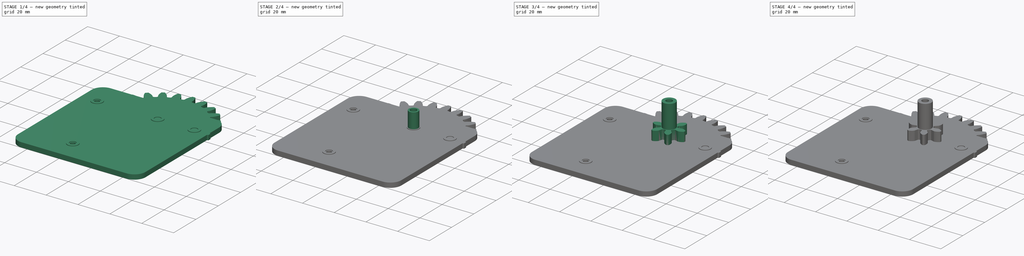
[diagram: build sequence overview — one tinted view per stage of 4, left to right]
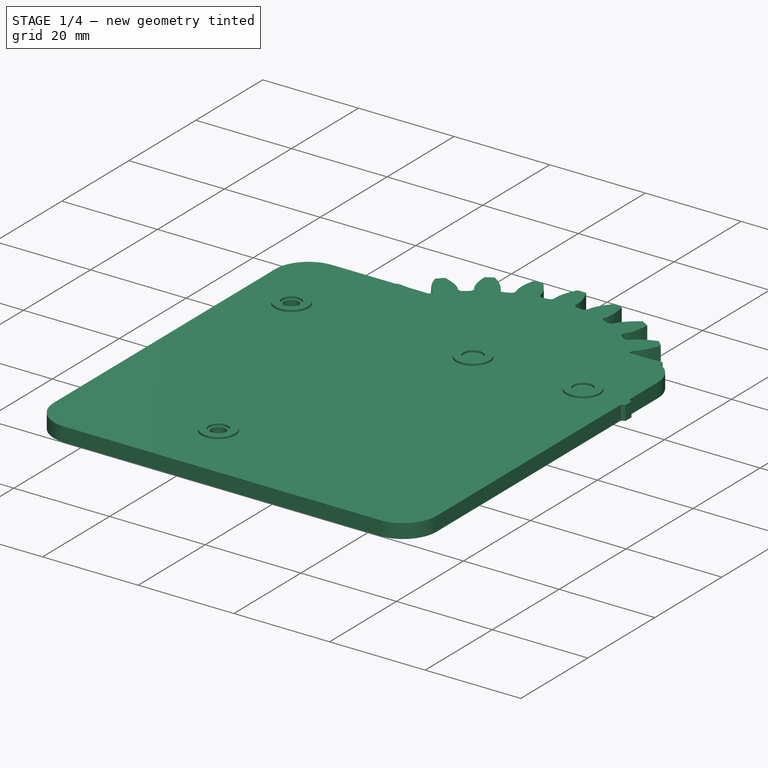
[diagram: stage 1 of 4 — iso view after this stage's code; geometry added in this stage tinted green]
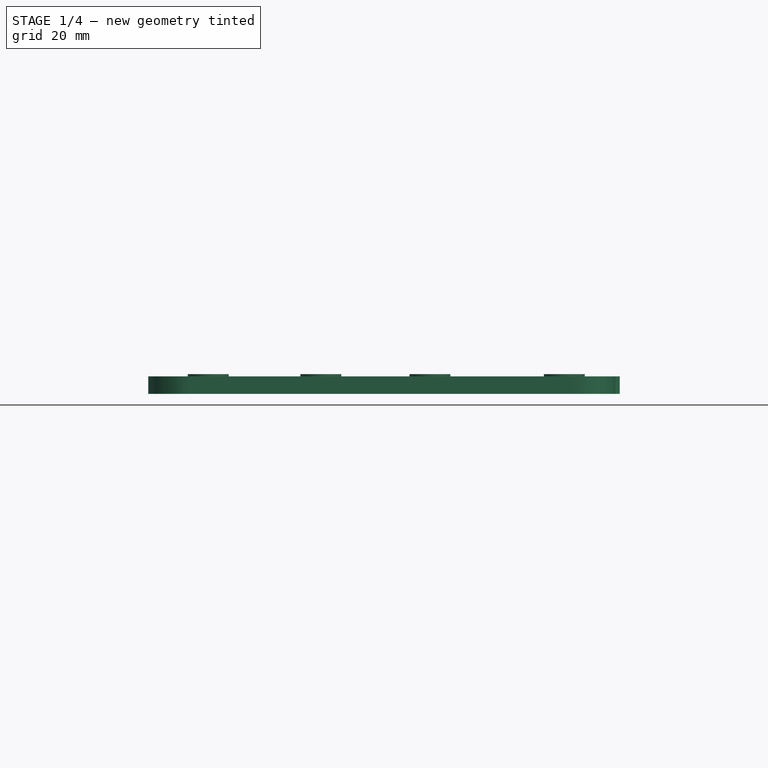
[diagram: stage 1 of 4 — front view after this stage's code; geometry added in this stage tinted green]
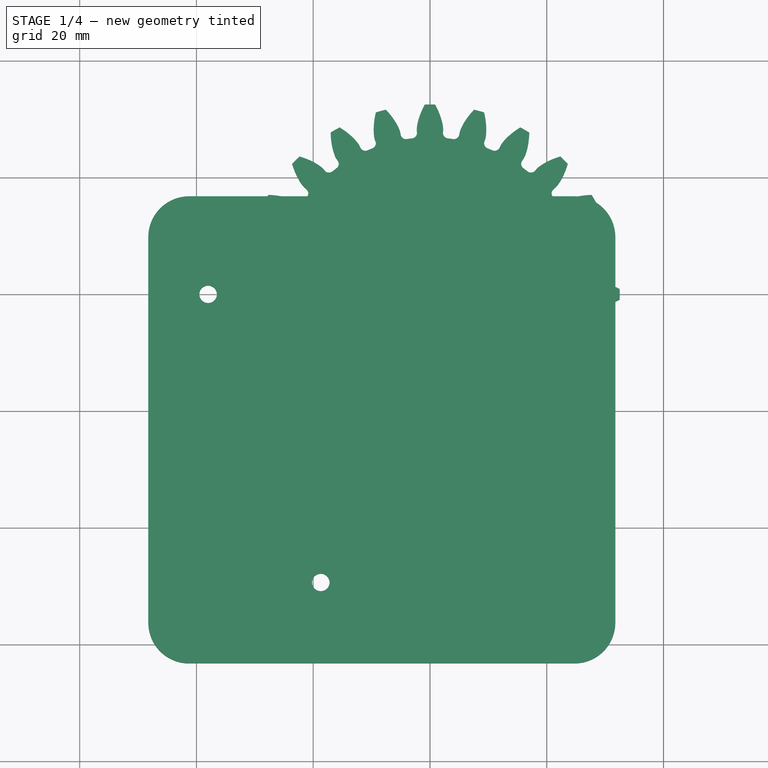
[diagram: stage 1 of 4 — top view after this stage's code; geometry added in this stage tinted green]
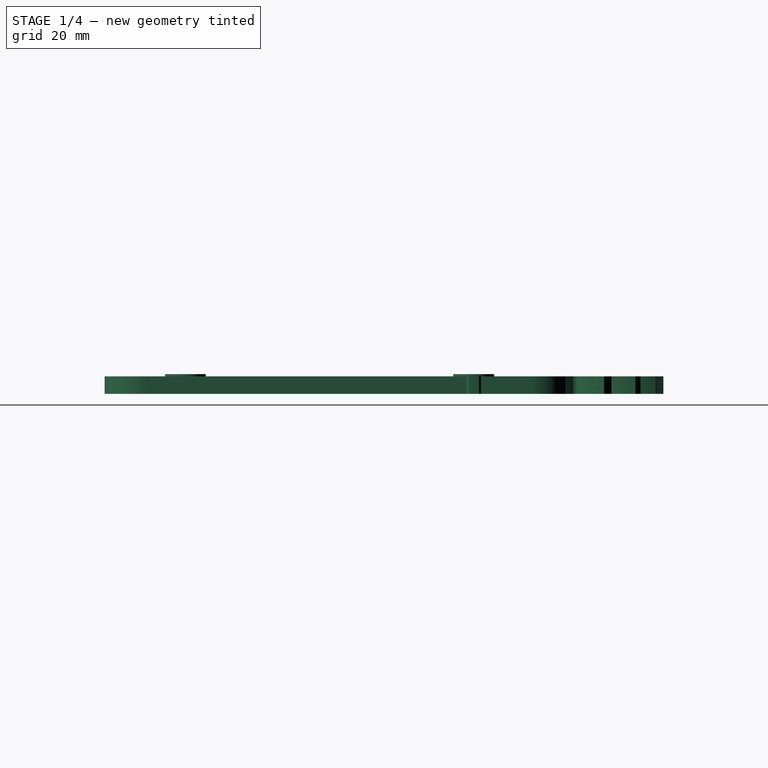
[diagram: stage 1 of 4 — right view after this stage's code; geometry added in this stage tinted green]
FCSTD DOCUMENT  (FreeCAD 0.18.3R)
Label: deno_gearbox
License: All rights reserved
LicenseURL: http://en.wikipedia.org/wiki/All_rights_reserved
objects: Sketcher::SketchObject×9, PartDesign::Pad×8, PartDesign::Pocket×5, PartDesign::Body×5, Part::Part2DObjectPython×4, PartDesign::Fillet×1
note: 45 computed .brp shape members not serialized (recipe doc carries the construction recipe); baked Part::Feature solids carry a one-line shape summary decoded from their .brp

FEATURE [PartDesign::Body] Body002  label="gear3_18"
  Group = -> [InvoluteGear002,Pad002,Sketch002,Pocket002]
  Origin = -> Origin002
  Placement = pos=(-38,0,0) rot=(0,0,1;0.523599rad)
  Tip = -> Pocket002
FEATURE [Part::Part2DObjectPython] InvoluteGear003  # Draft 2D object (typed FeaturePython)
  ExternalGear = true
  HighPrecision = true
  Modules = 2.5
  NumberOfTeeth = 24
  PressureAngle = 20
FEATURE [PartDesign::Pad] Pad003
  Length = 3
  Length2 = 100
  Profile = -> InvoluteGear003
  Type = 0
FEATURE [PartDesign::Body] Body003  label="gear3_24"
  Group = -> [InvoluteGear003,Pad003,Sketch003,Pocket003,Sketch005,Pocket004,Sketch006,Pad005]
  Origin = -> Origin003
  Placement = pos=(-19,-49,0) rot=(0,0,1;0rad)
  Tip = -> Pad005
FEATURE [Sketcher::SketchObject] Sketch007
  MapMode = 5
  Support = -> [XY_Plane004]
  sketch-geometry (8):
    g0: LineSegment StartX=31.7506 StartY=16.7796 StartZ=0 EndX=-48.2494 EndY=16.7796 EndZ=0
    g1: LineSegment StartX=-48.2494 StartY=16.7796 StartZ=0 EndX=-48.2494 EndY=-63.2204 EndZ=0
    g2: LineSegment StartX=-48.2494 StartY=-63.2204 StartZ=0 EndX=31.7506 EndY=-63.2204 EndZ=0
    g3: LineSegment StartX=31.7506 StartY=-63.2204 StartZ=0 EndX=31.7506 EndY=16.7796 EndZ=0
    g4: Circle CenterX=0 CenterY=0 CenterZ=0 NormalX=0 NormalY=0 NormalZ=1 AngleXU=0 Radius=1.5
    g5: Circle CenterX=-38 CenterY=0 CenterZ=0 NormalX=0 NormalY=0 NormalZ=1 AngleXU=0 Radius=1.5
    g6: Circle CenterX=23 CenterY=0 CenterZ=0 NormalX=0 NormalY=0 NormalZ=1 AngleXU=0 Radius=1.5
    g7: Circle CenterX=-18.6957 CenterY=-49.3594 CenterZ=0 NormalX=0 NormalY=0 NormalZ=1 AngleXU=0 Radius=1.5
  constraints (19):
    c: Coincident(g0,g1)
    c: Coincident(g1,g2)
    c: Coincident(g2,g3)
    c: Coincident(g3,g0)
    c: Horizontal(g0)
    c: Horizontal(g2)
    c: Vertical(g1)
    c: Vertical(g3)
    c: DistanceY(g3,g3) = 80
    c: DistanceX(g0,g0) = 80
    c: Radius(g4) = 1.5
    c: Coincident(g4,g-1)
    c: Equal(g4,g5) = 1.5
    c: PointOnObject(g5,g-1)
    c: Distance(g5,g4) = 38
    c: Equal(g4,g6) = 1.5
    c: PointOnObject(g6,g-1)
    c: Distance(g6,g4) = 23
    c: Distance(g7,g5) = 53
FEATURE [PartDesign::Pad] Pad006
  Length = 3
  Length2 = 100
  Profile = -> Sketch007
  Type = 0
FEATURE [Sketcher::SketchObject] Sketch008
  ExternalGeometry = -> [Pad006]
  MapMode = 5
  Placement = pos=(0,0,3) rot=(0,0,1;0rad)
  Support = -> [Pad006]
  sketch-geometry (8):
    g0: Circle CenterX=-37.9773 CenterY=0.015767 CenterZ=0 NormalX=0 NormalY=0 NormalZ=1 AngleXU=0 Radius=2
    g1: Circle CenterX=-37.9773 CenterY=0.015767 CenterZ=0 NormalX=0 NormalY=0 NormalZ=1 AngleXU=0 Radius=3.5
    g2: Circle CenterX=0 CenterY=0 CenterZ=0 NormalX=0 NormalY=0 NormalZ=1 AngleXU=0 Radius=2
    g3: Circle CenterX=0 CenterY=0 CenterZ=0 NormalX=0 NormalY=0 NormalZ=1 AngleXU=0 Radius=3.5
    g4: Circle CenterX=23 CenterY=0 CenterZ=0 NormalX=0 NormalY=0 NormalZ=1 AngleXU=0 Radius=3.5
    g5: Circle CenterX=23 CenterY=0 CenterZ=0 NormalX=0 NormalY=0 NormalZ=1 AngleXU=0 Radius=2
    g6: Circle CenterX=-18.6957 CenterY=-49.3594 CenterZ=0 NormalX=0 NormalY=0 NormalZ=1 AngleXU=0 Radius=3.5
    g7: Circle CenterX=-18.6957 CenterY=-49.3594 CenterZ=0 NormalX=0 NormalY=0 NormalZ=1 AngleXU=0 Radius=2
  constraints (9):
    c: Radius(g0) = 2
    c: Coincident(g1,g0)
    c: Radius(g1) = 3.5
    c: Equal(g0,g2) = 2
    c: Coincident(g3,g2)
    c: Equal(g1,g3) = 3.5
    c: Coincident(g4,g5)
    c: Coincident(g6,g7)
    c: Coincident(g4,g-5)
FEATURE [PartDesign::Pad] Pad007
  BaseFeature = -> Pad006
  Length = 0.4
  Length2 = 100
  Profile = -> Sketch008
  Type = 0
FEATURE [PartDesign::Fillet] Fillet
  Base = -> Pad007 [Edge5,Edge8,Edge2,Edge1]
  BaseFeature = -> Pad007
  Radius = 7
FEATURE [PartDesign::Body] Body004  label="geatbox_stand"
  Group = -> [Sketch007,Pad006,Sketch008,Pad007,Fillet]
  Origin = -> Origin004
  Placement = pos=(0,0,-3.5) rot=(0,0,1;0rad)
  Tip = -> Fillet
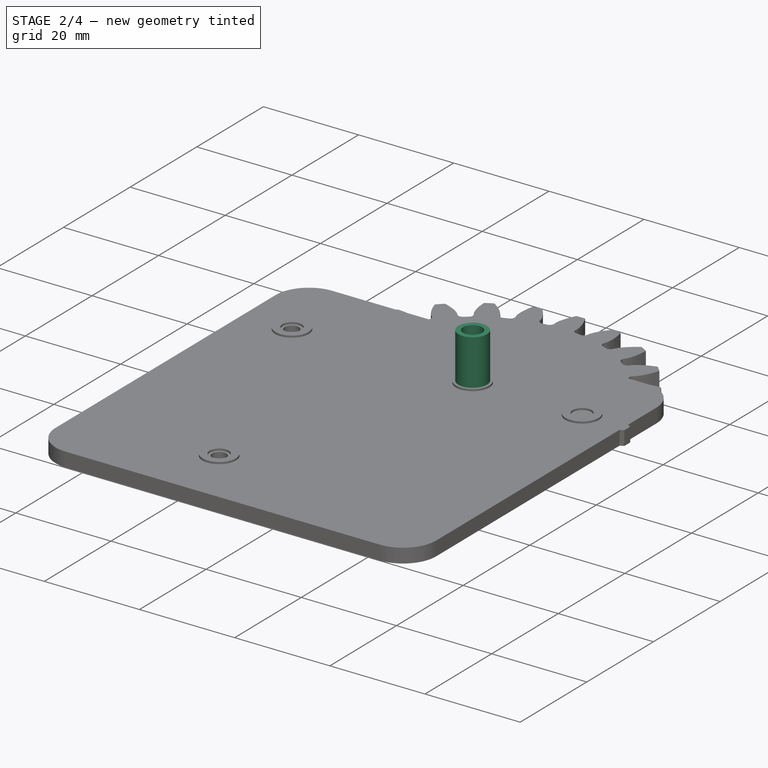
[diagram: stage 2 of 4 — iso view after this stage's code; geometry added in this stage tinted green]
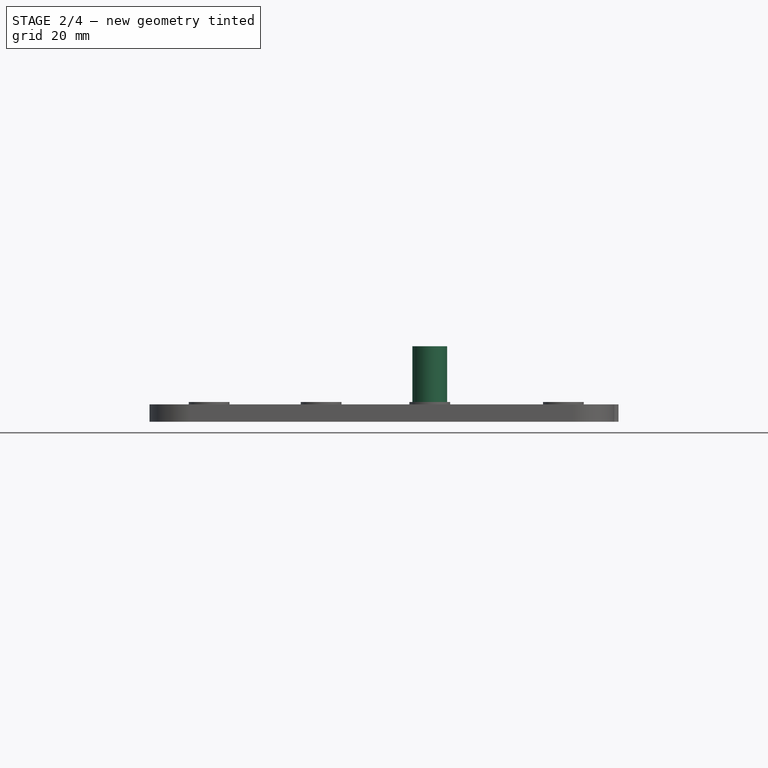
[diagram: stage 2 of 4 — front view after this stage's code; geometry added in this stage tinted green]
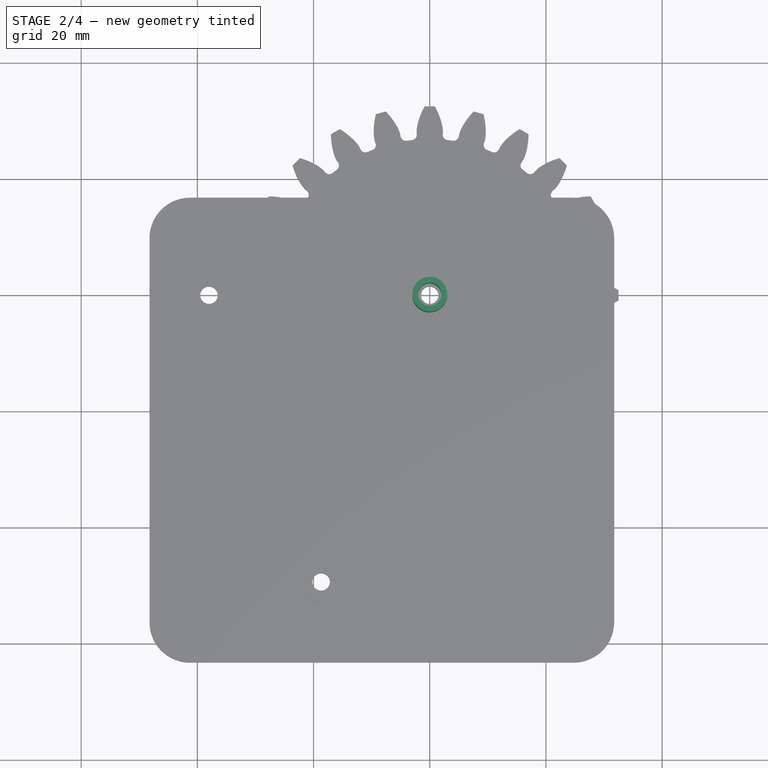
[diagram: stage 2 of 4 — top view after this stage's code; geometry added in this stage tinted green]
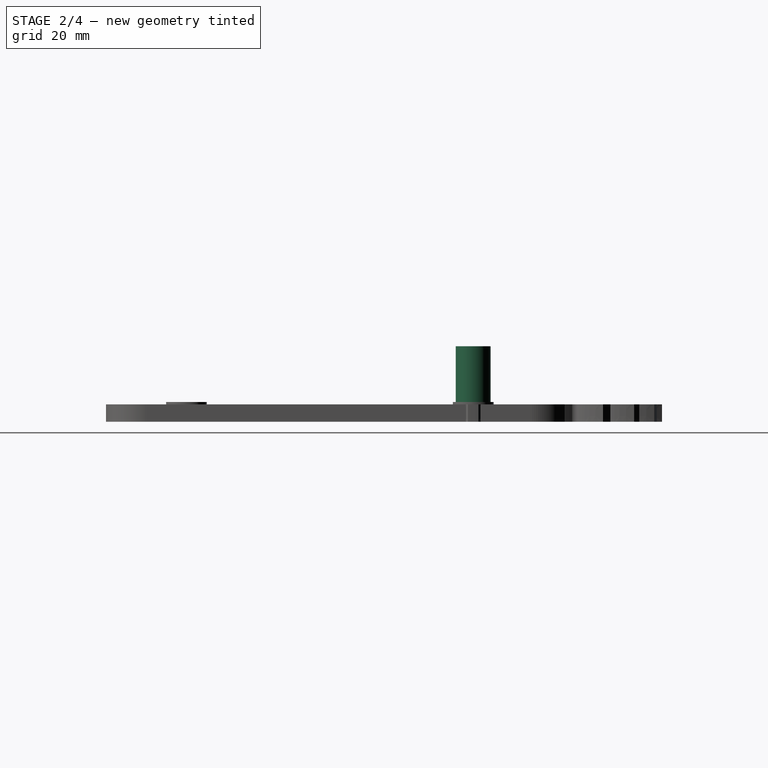
[diagram: stage 2 of 4 — right view after this stage's code; geometry added in this stage tinted green]
FEATURE [Sketcher::SketchObject] Sketch003
  MapMode = 5
  Placement = pos=(0,0,3) rot=(0,0,1;0rad)
  Support = -> [Pad003]
  sketch-geometry (1):
    g0: Circle CenterX=0 CenterY=0 CenterZ=0 NormalX=0 NormalY=0 NormalZ=1 AngleXU=0 Radius=1.5
  constraints (2):
    c: Radius(g0) = 1.5
    c: Coincident(g0,g-1)
FEATURE [PartDesign::Pocket] Pocket003
  BaseFeature = -> Pad003
  Length = 5
  Length2 = 100
  Profile = -> Sketch003
  Type = 0
FEATURE [PartDesign::Body] Body  label="gear3_6"
  Group = -> [InvoluteGear,Pad,Sketch,Pocket,Sketch004,Pad004]
  Origin = -> Origin
  Placement = pos=(23,0,0) rot=(0,0,1;0.523599rad)
  Tip = -> Pad004
FEATURE [Sketcher::SketchObject] Sketch005
  MapMode = 5
  Placement = pos=(0,0,3) rot=(0,0,1;0rad)
  Support = -> [Pocket003]
  sketch-geometry (2):
    g0: Circle CenterX=18 CenterY=0 CenterZ=0 NormalX=0 NormalY=0 NormalZ=1 AngleXU=0 Radius=1.5
    g1: Circle CenterX=-18 CenterY=0 CenterZ=0 NormalX=0 NormalY=0 NormalZ=1 AngleXU=0 Radius=1.5
  constraints (5):
    c: Radius(g1) = 1.5
    c: Equal(g1,g0)
    c: Symmetric(g1,g0,g-1)
    c: Distance(g-1,g0) = 18
    c: PointOnObject(g0,g-1)
FEATURE [PartDesign::Pocket] Pocket004
  BaseFeature = -> Pocket003
  Length = 5
  Length2 = 100
  Profile = -> Sketch005
  Type = 0
FEATURE [Sketcher::SketchObject] Sketch006
  MapMode = 5
  Placement = pos=(0,0,3) rot=(0,0,1;0rad)
  Support = -> [Pocket004]
  sketch-geometry (2):
    g0: Circle CenterX=0 CenterY=0 CenterZ=0 NormalX=0 NormalY=0 NormalZ=1 AngleXU=0 Radius=2
    g1: Circle CenterX=0 CenterY=0 CenterZ=0 NormalX=0 NormalY=0 NormalZ=1 AngleXU=0 Radius=3
  constraints (4):
    c: Coincident(g0,g-1)
    c: Radius(g0) = 2
    c: Coincident(g1,g0)
    c: Radius(g1) = 3
FEATURE [PartDesign::Pad] Pad005
  BaseFeature = -> Pocket004
  Length = 10
  Length2 = 100
  Profile = -> Sketch006
  Type = 0
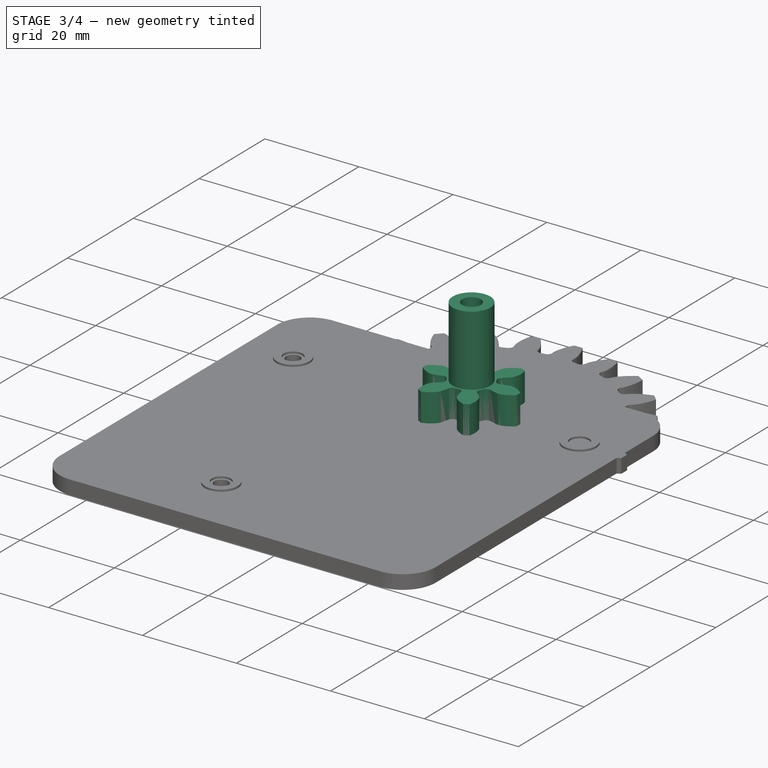
[diagram: stage 3 of 4 — iso view after this stage's code; geometry added in this stage tinted green]
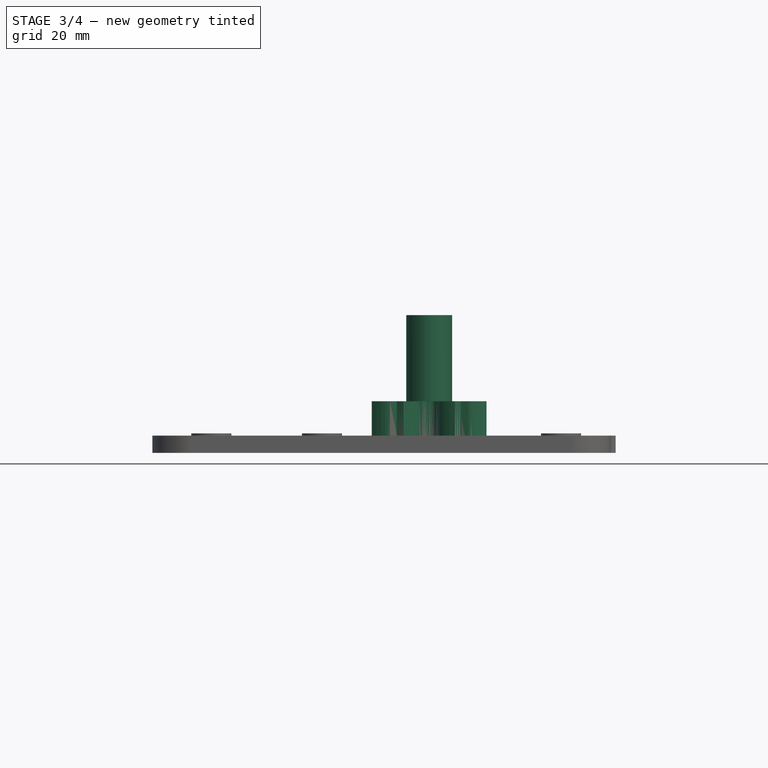
[diagram: stage 3 of 4 — front view after this stage's code; geometry added in this stage tinted green]
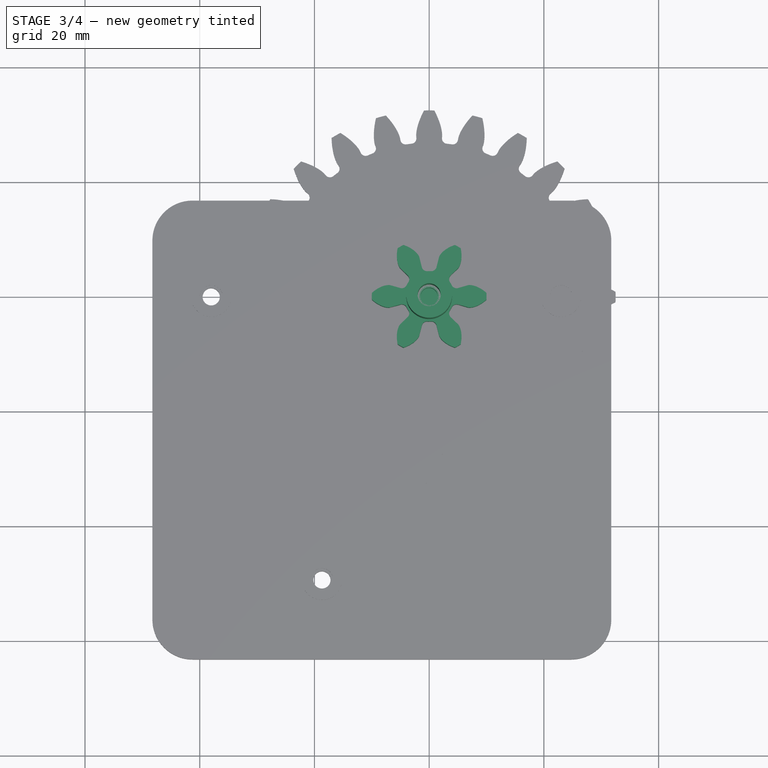
[diagram: stage 3 of 4 — top view after this stage's code; geometry added in this stage tinted green]
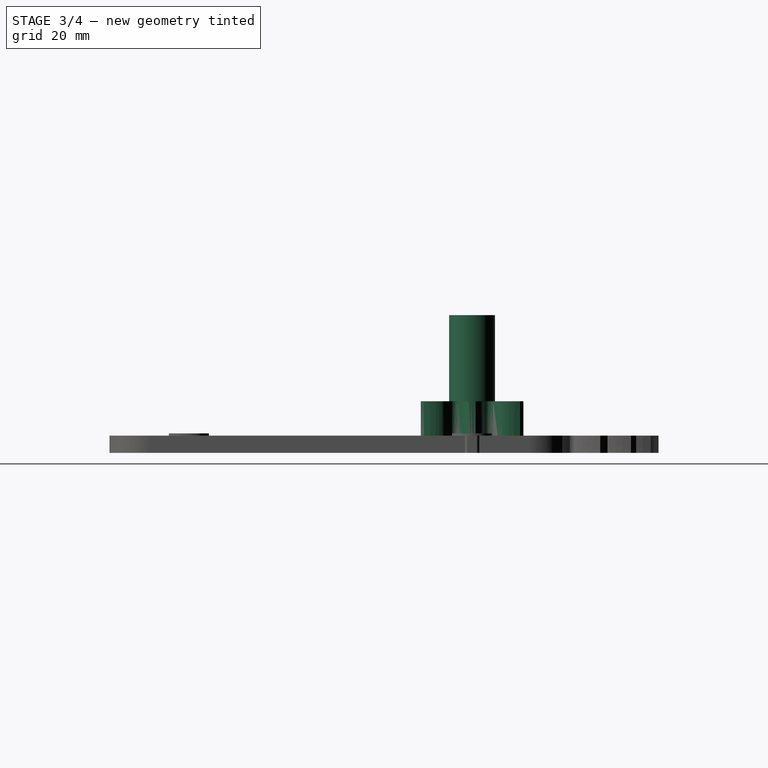
[diagram: stage 3 of 4 — right view after this stage's code; geometry added in this stage tinted green]
FEATURE [Part::Part2DObjectPython] InvoluteGear  # Draft 2D object (typed FeaturePython)
  ExternalGear = true
  HighPrecision = true
  Modules = 2.5
  NumberOfTeeth = 6
  PressureAngle = 20
FEATURE [PartDesign::Pad] Pad
  Length = 9
  Length2 = 100
  Profile = -> InvoluteGear
  Type = 0
FEATURE [Sketcher::SketchObject] Sketch
  MapMode = 5
  Placement = pos=(0,0,9) rot=(0,0,1;0rad)
  Support = -> [Pad]
  sketch-geometry (1):
    g0: Circle CenterX=0 CenterY=0 CenterZ=0 NormalX=0 NormalY=0 NormalZ=1 AngleXU=0 Radius=1.5
  constraints (2):
    c: Radius(g0) = 1.5
    c: Coincident(g0,g-1)
FEATURE [PartDesign::Pocket] Pocket
  BaseFeature = -> Pad
  Length = 5
  Length2 = 100
  Profile = -> Sketch
  Type = 0
FEATURE [Sketcher::SketchObject] Sketch004
  MapMode = 5
  Placement = pos=(0,0,9) rot=(0,0,1;0rad)
  Support = -> [Pocket]
  sketch-geometry (2):
    g0: Circle CenterX=0 CenterY=0 CenterZ=0 NormalX=0 NormalY=0 NormalZ=1 AngleXU=0 Radius=2
    g1: Circle CenterX=0 CenterY=0 CenterZ=0 NormalX=0 NormalY=0 NormalZ=1 AngleXU=0 Radius=4
  constraints (4):
    c: Coincident(g0,g1)
    c: Coincident(g0,g-1)
    c: Radius(g0) = 2
    c: Radius(g1) = 4
FEATURE [PartDesign::Pad] Pad004
  BaseFeature = -> Pocket
  Length = 15
  Length2 = 100
  Profile = -> Sketch004
  Type = 0
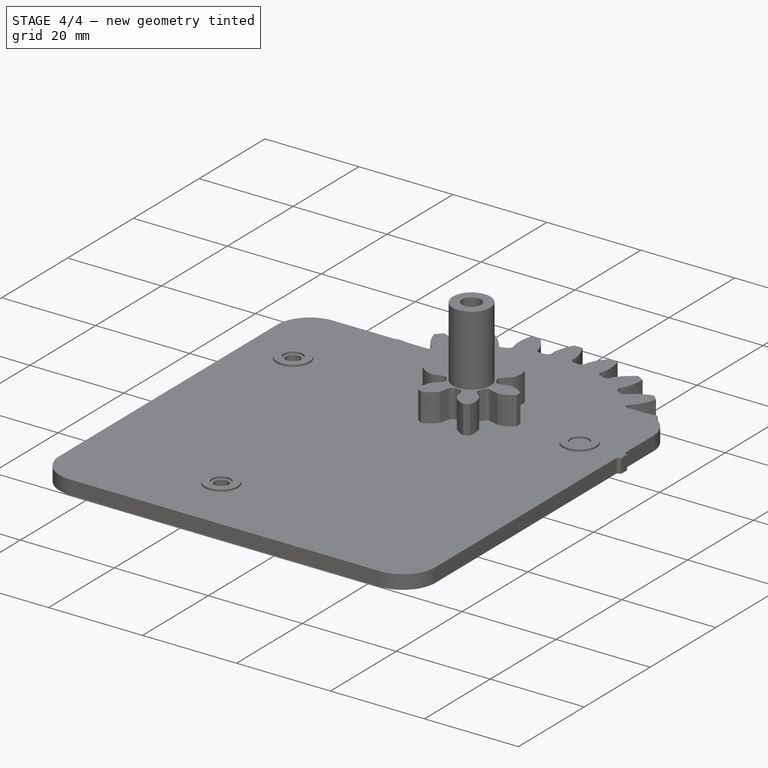
[diagram: stage 4 of 4 — iso view after this stage's code; geometry added in this stage tinted green]
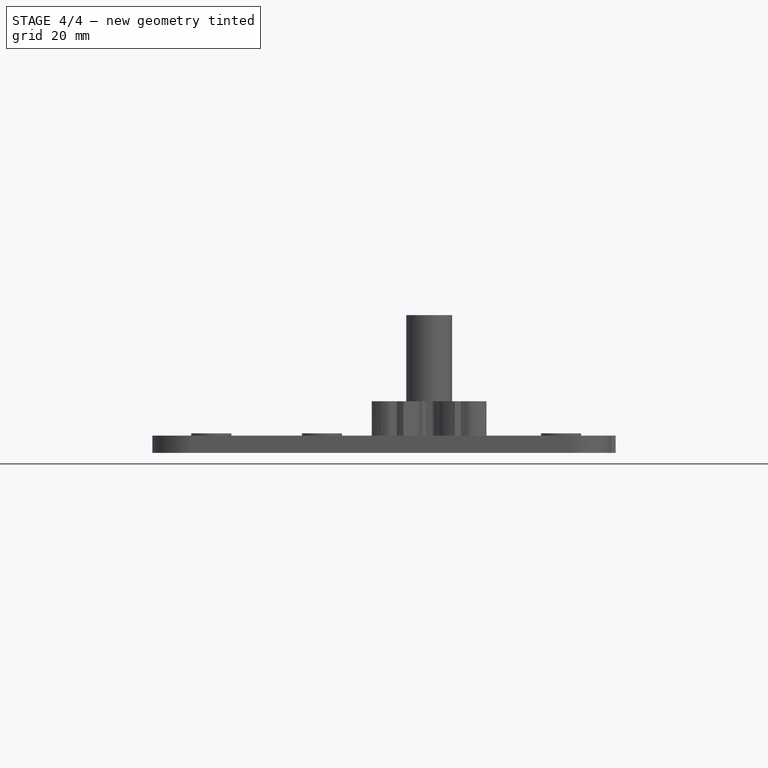
[diagram: stage 4 of 4 — front view after this stage's code; geometry added in this stage tinted green]
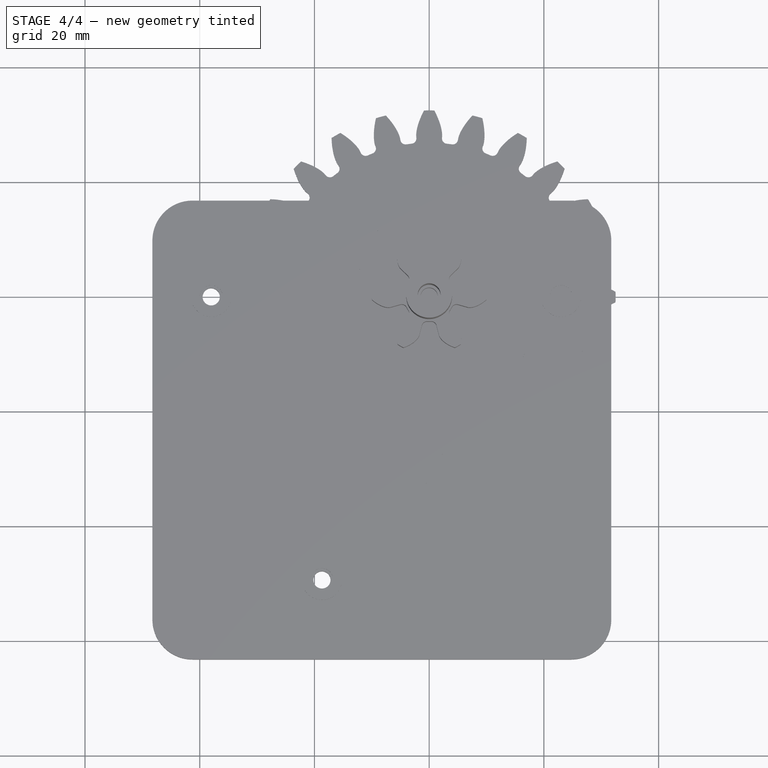
[diagram: stage 4 of 4 — top view after this stage's code; geometry added in this stage tinted green]
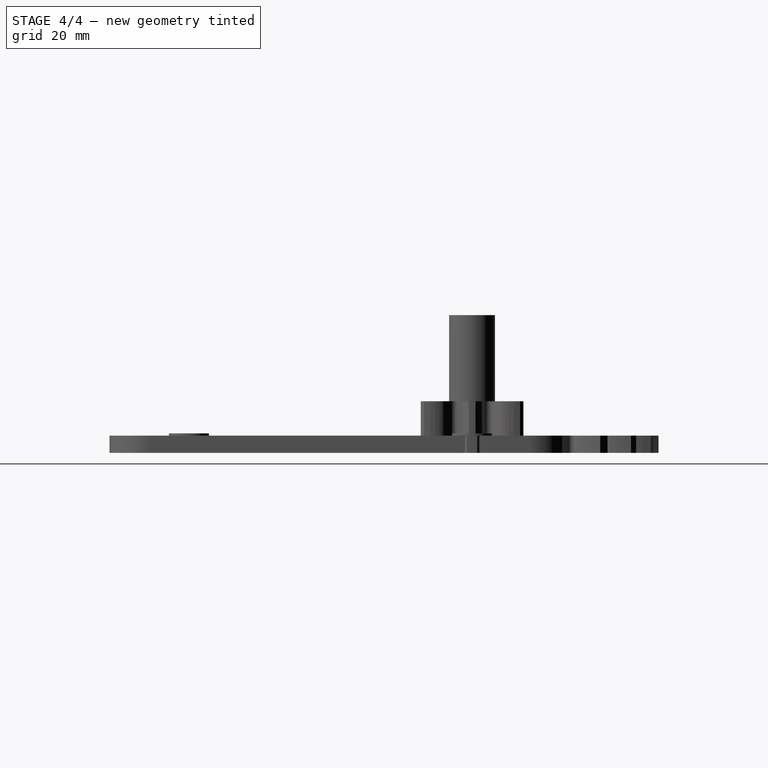
[diagram: stage 4 of 4 — right view after this stage's code; geometry added in this stage tinted green]
FEATURE [Part::Part2DObjectPython] InvoluteGear001  # Draft 2D object (typed FeaturePython)
  ExternalGear = true
  HighPrecision = true
  Modules = 2.5
  NumberOfTeeth = 12
  PressureAngle = 20
FEATURE [PartDesign::Pad] Pad001
  Length = 3
  Length2 = 100
  Profile = -> InvoluteGear001
  Type = 0
FEATURE [Sketcher::SketchObject] Sketch001
  MapMode = 5
  Placement = pos=(0,0,3) rot=(0,0,1;0rad)
  Support = -> [Pad001]
  sketch-geometry (1):
    g0: Circle CenterX=0 CenterY=0 CenterZ=0 NormalX=0 NormalY=0 NormalZ=1 AngleXU=0 Radius=1.5
  constraints (2):
    c: Radius(g0) = 1.5
    c: Coincident(g-1,g0)
FEATURE [PartDesign::Pocket] Pocket001
  BaseFeature = -> Pad001
  Length = 5
  Length2 = 100
  Profile = -> Sketch001
  Type = 0
FEATURE [PartDesign::Body] Body001  label="gear3_12"
  Group = -> [InvoluteGear001,Pad001,Sketch001,Pocket001]
  Origin = -> Origin001
  Tip = -> Pocket001
FEATURE [Part::Part2DObjectPython] InvoluteGear002  # Draft 2D object (typed FeaturePython)
  ExternalGear = true
  HighPrecision = true
  Modules = 2.5
  NumberOfTeeth = 18
  PressureAngle = 20
FEATURE [PartDesign::Pad] Pad002
  Length = 3
  Length2 = 100
  Profile = -> InvoluteGear002
  Type = 0
FEATURE [Sketcher::SketchObject] Sketch002
  MapMode = 5
  Placement = pos=(0,0,3) rot=(0,0,1;0rad)
  Support = -> [Pad002]
  sketch-geometry (1):
    g0: Circle CenterX=0 CenterY=0 CenterZ=0 NormalX=0 NormalY=0 NormalZ=1 AngleXU=0 Radius=1.5
  constraints (2):
    c: Radius(g0) = 1.5
    c: Coincident(g0,g-1)
FEATURE [PartDesign::Pocket] Pocket002
  BaseFeature = -> Pad002
  Length = 5
  Length2 = 100
  Profile = -> Sketch002
  Type = 0
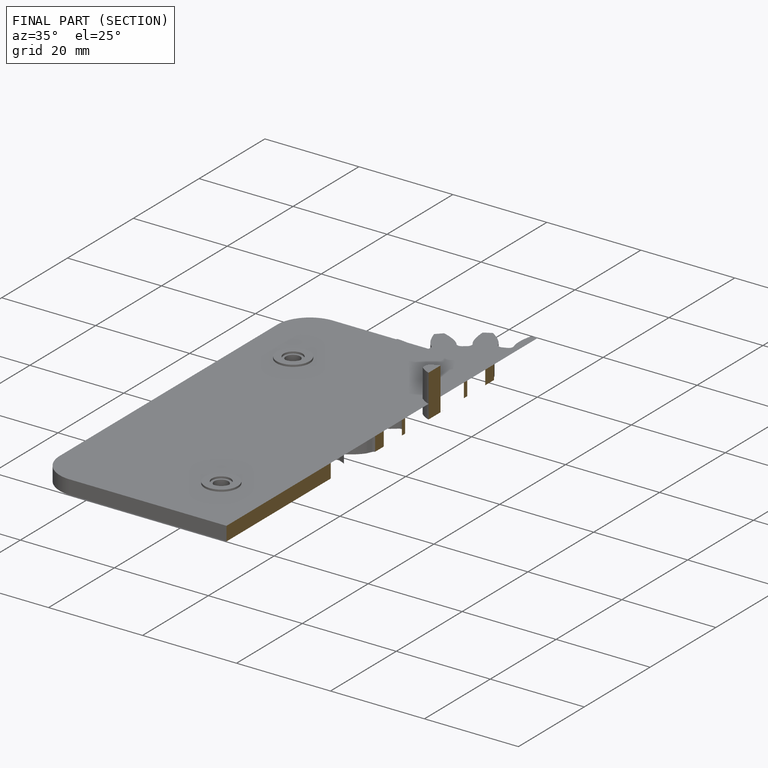
[diagram: finished part — half-section view (interior)]
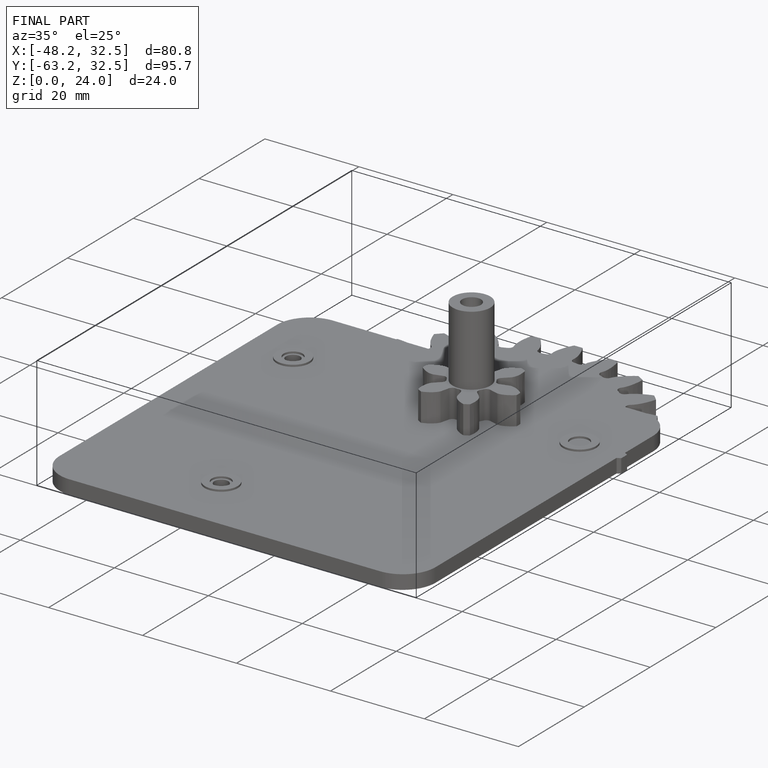
[diagram: finished part — iso view with bounding-box wireframe]
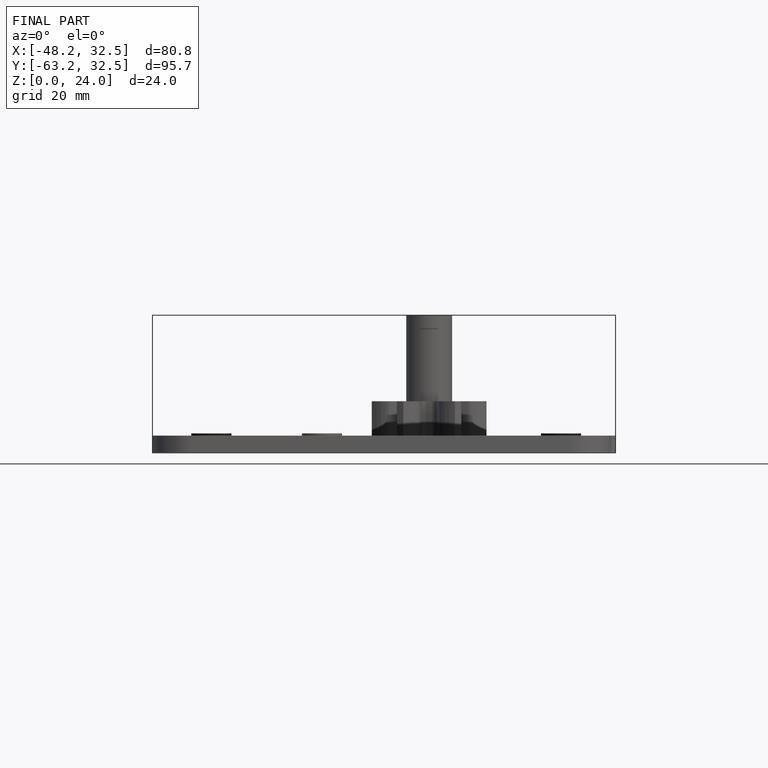
[diagram: finished part — front view with bounding-box wireframe]
